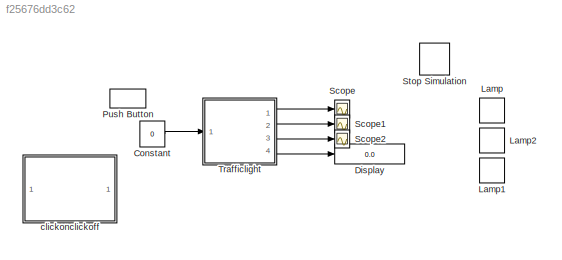
MODEL slx_f25676dd3c62
KIND model
CONFIG AbsTol = auto
CONFIG EnableMultiTasking = off
CONFIG FixedStep = auto
CONFIG MaxStep = auto
CONFIG MinStep = auto
CONFIG RelTol = 1e-3
CONFIG SampleTimeConstraint = Unconstrained
CONFIG Solver = VariableStepAuto
CONFIG SolverName = VariableStepAuto
CONFIG StartTime = 0.0
CONFIG StopTime = inf
BLOCK [Constant] Constant
  Value = 0
BLOCK [Display] Display
  Decimation = 1
  Ports = [1]
BLOCK [LampBlock] Lamp
BLOCK [LampBlock] Lamp1
BLOCK [LampBlock] Lamp2
BLOCK [PushButtonBlock] Push Button
BLOCK [Scope] Scope
  Floating = off
  NumInputPorts = 1
  Ports = [1]
  ScopeSpecificationString = Simulink.scopes.TimeScopeBlockCfg('CurrentConfiguration', extmgr.ConfigurationSet(extmgr.Configuration('Core','General UI',true),extmgr.Configuration('Core','Source UI',true),extmgr.Configuration('Sources','WiredSimulink',true),extmgr.Configuration('Visuals','Time Domain',true),extmgr.Configuration('Tools','Plot Navigation',true),extmgr.Configuration('Tools','Measurements',true)),'Version','2020a'...<+1ch>
BLOCK [Scope] Scope1
  Floating = off
  NumInputPorts = 1
  Ports = [1]
  ScopeSpecificationString = Simulink.scopes.TimeScopeBlockCfg('CurrentConfiguration', extmgr.ConfigurationSet(extmgr.Configuration('Core','General UI',true),extmgr.Configuration('Core','Source UI',true),extmgr.Configuration('Sources','WiredSimulink',true,'DataLoggingVariableName','ScopeData1'),extmgr.Configuration('Visuals','Time Domain',true),extmgr.Configuration('Tools','Plot Navigation',true),extmgr.Configuration('Tools',...<+40ch>
BLOCK [Scope] Scope2
  Floating = off
  NumInputPorts = 1
  Ports = [1]
  ScopeSpecificationString = Simulink.scopes.TimeScopeBlockCfg('CurrentConfiguration', extmgr.ConfigurationSet(extmgr.Configuration('Core','General UI',true),extmgr.Configuration('Core','Source UI',true),extmgr.Configuration('Sources','WiredSimulink',true,'DataLoggingVariableName','ScopeData2'),extmgr.Configuration('Visuals','Time Domain',true),extmgr.Configuration('Tools','Plot Navigation',true),extmgr.Configuration('Tools',...<+40ch>
BLOCK [Stop] Stop Simulation
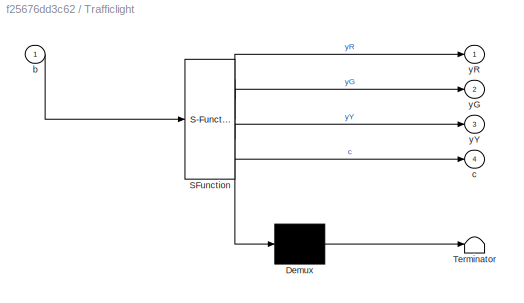
BLOCK [SubSystem] Trafficlight
  ErrorFcn = Stateflow.Translate.translate
  PermitHierarchicalResolution = ExplicitOnly
  Ports = [1, 4]
  RequestExecContextInheritance = off
  SFBlockType = Chart
  TreatAsAtomicUnit = on
BLOCK [Demux] Trafficlight/ Demux 
  Outputs = 1
  Ports = [1, 1]
BLOCK [S-Function] Trafficlight/ SFunction 
  EnableBusSupport = on
  FunctionName = sf_sfun
  PortCounts = [1 5]
  Ports = [1, 5]
  SFcnIsStateOwnerBlock = off
  SFunctionDeploymentMode = off
  Tag = Stateflow S-Function 3
BLOCK [Terminator] Trafficlight/ Terminator 
BLOCK [Inport] Trafficlight/b
BLOCK [Outport] Trafficlight/c
  Port = 4
BLOCK [Outport] Trafficlight/yG
  Port = 2
BLOCK [Outport] Trafficlight/yR
BLOCK [Outport] Trafficlight/yY
  Port = 3
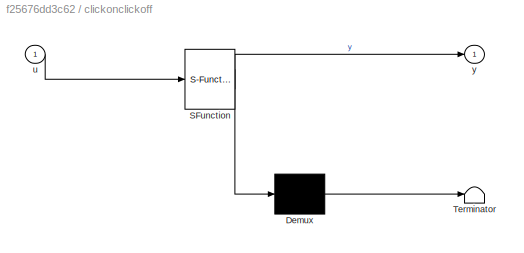
BLOCK [SubSystem] clickonclickoff
  ErrorFcn = Stateflow.Translate.translate
  PermitHierarchicalResolution = ExplicitOnly
  Ports = [1, 1]
  RequestExecContextInheritance = off
  SFBlockType = Chart
  TreatAsAtomicUnit = on
BLOCK [Demux] clickonclickoff/ Demux 
  Outputs = 1
  Ports = [1, 1]
BLOCK [S-Function] clickonclickoff/ SFunction 
  EnableBusSupport = on
  FunctionName = sf_sfun
  PortCounts = [1 2]
  Ports = [1, 2]
  SFcnIsStateOwnerBlock = off
  SFunctionDeploymentMode = off
  Tag = Stateflow S-Function 1
BLOCK [Terminator] clickonclickoff/ Terminator 
BLOCK [Inport] clickonclickoff/u
BLOCK [Outport] clickonclickoff/y
LINE Constant:1 -> Trafficlight:1
LINE Trafficlight:1 -> Scope:1
LINE Trafficlight:2 -> Scope1:1
LINE Trafficlight:3 -> Scope2:1
LINE Trafficlight:4 -> Display:1
CHART clickonclickoff states=4 transitions=6
  STATE_LABEL 'ready_OFF'
  STATE_LABEL 'just_ON'
  STATE_LABEL 'just_OFF'
  STATE_LABEL 'ready_ON'
CHART Trafficlight states=4 transitions=6
  STATE_LABEL 'Green\nduring:\nc=c+1;'
  STATE_LABEL 'Red\nduring:\nc=c+1;'
  STATE_LABEL 'Wait\nduring:\nc=c+1;'
  STATE_LABEL 'Yellow\nduring:\nc=c+1;'
CHART  states=0 transitions=0
CHART  states=0 transitions=0
